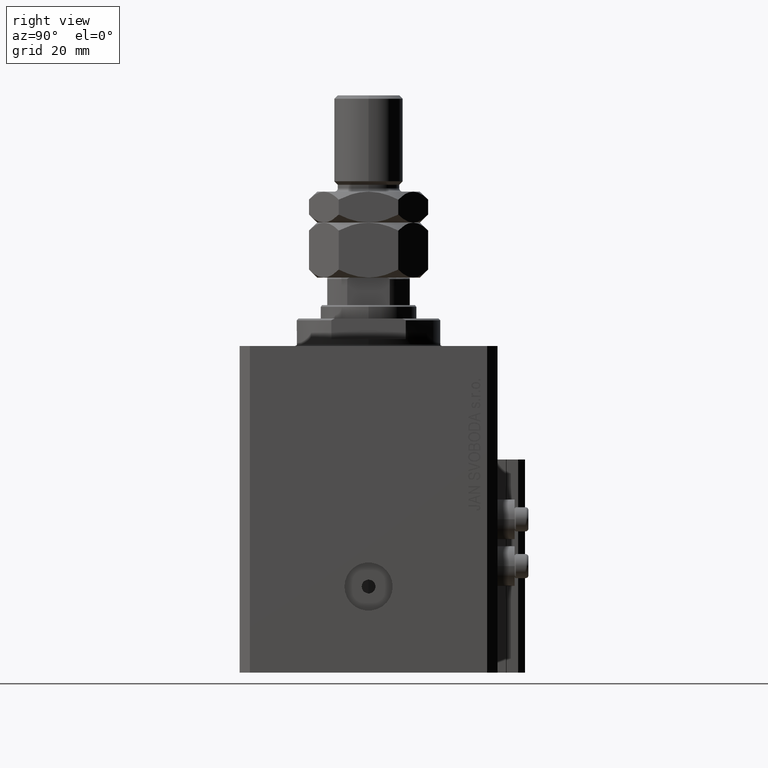
[diagram: clean part render]
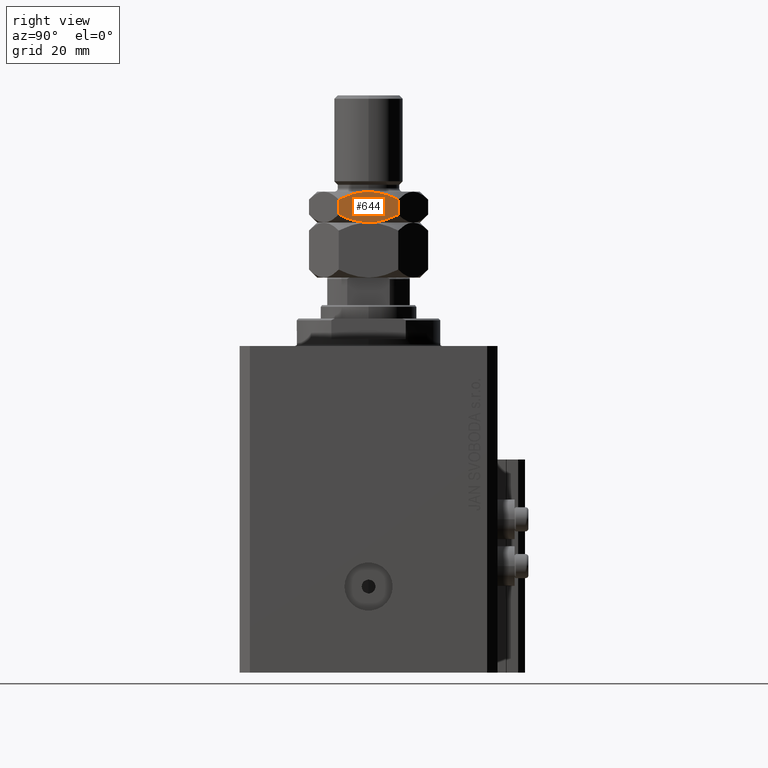
[diagram: same view with one face highlighted and labeled with its STEP entity id]
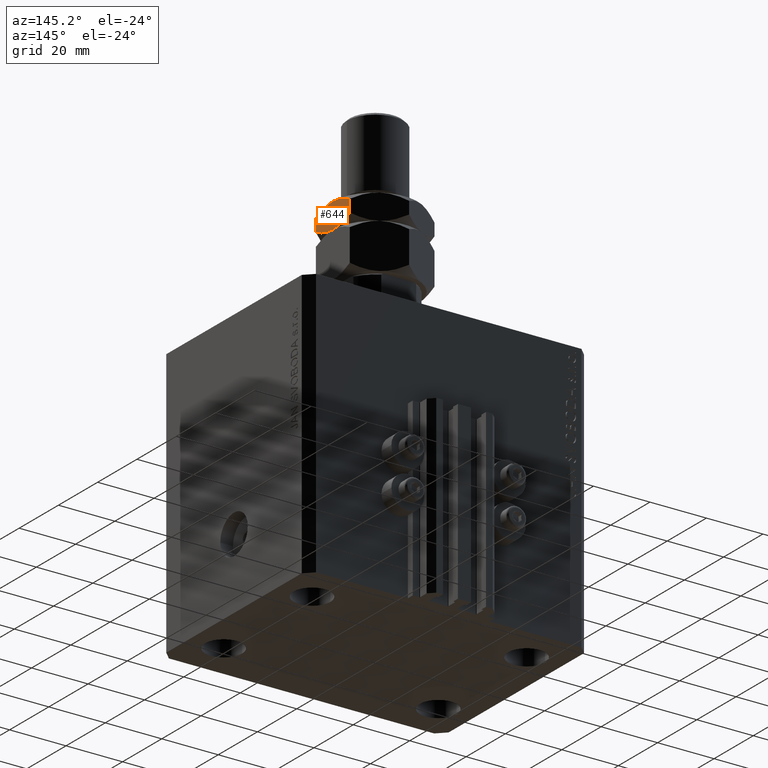
[diagram: same view with one face highlighted and labeled with its STEP entity id]
A machine part, right view. The second image highlights one B-rep face of the part: STEP entity #644.
A second angle (auxiliary view) of the same face is appended — the face is thin or edge-on in the first view.
In plain terms, the highlighted planar face has unit normal (-1, -0, 0).
Its self-contained STEP definition (entity closure, byte-faithful):
#284 = CARTESIAN_POINT ( 'NONE',  ( 14.99999999999999645, 0.000000000000000000, 16.00000000000000000 ) ) ;
#644 = ADVANCED_FACE ( 'NONE', ( #46542 ), #31485, .F. ) ;
#651 = ORIENTED_EDGE ( 'NONE', *, *, #32566, .F. ) ;
#862 = CARTESIAN_POINT ( 'NONE',  ( 14.99999999999999112, -6.248143622294143107, 23.75390217982290864 ) ) ;
#1588 = ORIENTED_EDGE ( 'NONE', *, *, #10066, .F. ) ;
#2014 = CARTESIAN_POINT ( 'NONE',  ( 15.00000000000000000, -5.174827754835039428, 24.13601744246643932 ) ) ;
#2135 = CARTESIAN_POINT ( 'NONE',  ( 15.00000000000000178, -3.006083412830564239, 16.28061096559729393 ) ) ;
#2637 = LINE ( 'NONE', #13972, #26552 ) ;
#2772 = CARTESIAN_POINT ( 'NONE',  ( 14.99999999999999467, 3.004852722955711819, 16.23490203621984307 ) ) ;
#5635 = B_SPLINE_CURVE_WITH_KNOTS ( 'NONE', 3,
 ( #21524, #18304, #48420, #10896, #41011, #40027, #21280, #2772, #8174, #284 ),
 .UNSPECIFIED., .F., .F.,
 ( 4, 2, 2, 2, 4 ),
 ( 0.02288126756189531180, 0.02513980803698757580, 0.02626907827453370953, 0.02739834851207984326, 0.03191542946226437472 ),
 .UNSPECIFIED. ) ;
#6149 = CARTESIAN_POINT ( 'NONE',  ( 14.99999999999999822, 5.180699559534207133, 24.14562739175687867 ) ) ;
#6263 = ORIENTED_EDGE ( 'NONE', *, *, #23060, .F. ) ;
#6292 = CARTESIAN_POINT ( 'NONE',  ( 15.00000000000000000, -3.737365789271273275, 16.44310156405335732 ) ) ;
#7221 = VECTOR ( 'NONE', #7713, 1000.000000000000000 ) ;
#7360 = CARTESIAN_POINT ( 'NONE',  ( 14.99999999999999645, 5.892768039091680343, 23.89692361009772625 ) ) ;
#7713 = DIRECTION ( 'NONE',  ( -0.000000000000000000, -0.000000000000000000, -1.000000000000000000 ) ) ;
#8174 = CARTESIAN_POINT ( 'NONE',  ( 14.99999999999999645, 1.524122972781247309, 15.99999999999999645 ) ) ;
#8259 = CARTESIAN_POINT ( 'NONE',  ( 14.99999999999999645, 1.502314598737159426E-15, 25.00000000000000000 ) ) ;
#8972 = CARTESIAN_POINT ( 'NONE',  ( 14.99999999999999645, 0.000000000000000000, 16.00000000000000000 ) ) ;
#9419 = CARTESIAN_POINT ( 'NONE',  ( 14.99999999999999645, -1.524122972781246865, 25.00000000000000000 ) ) ;
#9870 = CARTESIAN_POINT ( 'NONE',  ( 14.99999999999999645, 1.502314598737159426E-15, 25.00000000000000000 ) ) ;
#9895 = CARTESIAN_POINT ( 'NONE',  ( 14.99999999999999822, -8.660254037844383745, 22.67949192431123961 ) ) ;
#10035 = VERTEX_POINT ( 'NONE', #13734 ) ;
#10066 = EDGE_CURVE ( 'NONE', #10035, #47453, #2637, .T. ) ;
#10222 = AXIS2_PLACEMENT_3D ( 'NONE', #12722, #42116, #34447 ) ;
#10837 = CARTESIAN_POINT ( 'NONE',  ( 14.99999999999999822, 7.301375305910570823, 23.32983397160520411 ) ) ;
#10896 = CARTESIAN_POINT ( 'NONE',  ( 14.99999999999999112, 6.248143622294145771, 17.24609782017707715 ) ) ;
#11011 = DIRECTION ( 'NONE',  ( -0.000000000000000000, -0.000000000000000000, -1.000000000000000000 ) ) ;
#11960 = CARTESIAN_POINT ( 'NONE',  ( 14.99999999999999822, -7.988341278889598662, 23.01544830378863438 ) ) ;
#12722 = CARTESIAN_POINT ( 'NONE',  ( 14.99999999999999822, -8.660254037844381969, 25.00000000000000000 ) ) ;
#13711 = CARTESIAN_POINT ( 'NONE',  ( 14.99999999999999822, -1.517610682399678002, 16.07187944091290888 ) ) ;
#13734 = CARTESIAN_POINT ( 'NONE',  ( 14.99999999999999822, 8.660254037844385522, 22.67949192431123961 ) ) ;
#13972 = CARTESIAN_POINT ( 'NONE',  ( 14.99999999999999645, 8.660254037844385522, 25.00000000000000000 ) ) ;
#15125 = CARTESIAN_POINT ( 'NONE',  ( 14.99999999999999822, -8.660254037844381969, 25.00000000000000000 ) ) ;
#15943 = CARTESIAN_POINT ( 'NONE',  ( 14.99999999999999645, 8.660254037844387298, 18.32050807568876394 ) ) ;
#17191 = CARTESIAN_POINT ( 'NONE',  ( 15.00000000000000000, -8.660254037844381969, 18.32050807568876394 ) ) ;
#18304 = CARTESIAN_POINT ( 'NONE',  ( 14.99999999999999645, 7.988341278889603991, 17.98455169621137983 ) ) ;
#20011 = CARTESIAN_POINT ( 'NONE',  ( 14.99999999999999822, -8.660254037844383745, 22.67949192431123961 ) ) ;
#20254 = CARTESIAN_POINT ( 'NONE',  ( 14.99999999999999645, 1.502314598737159426E-15, 25.00000000000000000 ) ) ;
#20904 = CARTESIAN_POINT ( 'NONE',  ( 15.00000000000000000, -1.891887532498635061, 16.11437633297792615 ) ) ;
#21280 = CARTESIAN_POINT ( 'NONE',  ( 14.99999999999999822, 4.814853579356897839, 16.74999630955690577 ) ) ;
#21367 = CARTESIAN_POINT ( 'NONE',  ( 15.00000000000000178, -5.892768039091683008, 17.10307638990227730 ) ) ;
#21441 = EDGE_CURVE ( 'NONE', #26773, #37728, #23392, .T. ) ;
#21524 = CARTESIAN_POINT ( 'NONE',  ( 14.99999999999999645, 8.660254037844387298, 18.32050807568876394 ) ) ;
#22755 = EDGE_CURVE ( 'NONE', #47453, #26773, #5635, .T. ) ;
#23038 = LINE ( 'NONE', #15125, #7221 ) ;
#23060 = EDGE_CURVE ( 'NONE', #30489, #10035, #29131, .T. ) ;
#23392 = B_SPLINE_CURVE_WITH_KNOTS ( 'NONE', 3,
 ( #47288, #25066, #40113, #13711, #20904, #2135, #6292, #28776, #21367, #36412, #31765, #17191 ),
 .UNSPECIFIED., .F., .F.,
 ( 4, 2, 2, 2, 2, 4 ),
 ( 0.03191542946226437472, 0.03304303448889991252, 0.03417063951553545031, 0.03642584956880652591, 0.03868105962207760151, 0.04093626967534867711 ),
 .UNSPECIFIED. ) ;
#24915 = CARTESIAN_POINT ( 'NONE',  ( 14.99999999999999822, 3.006083412830564683, 24.71938903440270607 ) ) ;
#25066 = CARTESIAN_POINT ( 'NONE',  ( 15.00000000000000178, -0.3804688789667639015, 16.00000000000000000 ) ) ;
#25448 = B_SPLINE_CURVE_WITH_KNOTS ( 'NONE', 3,
 ( #9895, #11960, #28173, #862, #46930, #2014, #45785, #43230, #9419, #8259 ),
 .UNSPECIFIED., .F., .F.,
 ( 4, 2, 2, 2, 4 ),
 ( 0.02288126756189531180, 0.02513980803698757580, 0.02626907827453370953, 0.02739834851207984326, 0.03191542946226437472 ),
 .UNSPECIFIED. ) ;
#25721 = EDGE_CURVE ( 'NONE', #27805, #37728, #23038, .T. ) ;
#25750 = ORIENTED_EDGE ( 'NONE', *, *, #22755, .F. ) ;
#26552 = VECTOR ( 'NONE', #11011, 1000.000000000000000 ) ;
#26757 = EDGE_LOOP ( 'NONE', ( #25750, #1588, #6263, #651, #30756, #36799 ) ) ;
#26773 = VERTEX_POINT ( 'NONE', #8972 ) ;
#27805 = VERTEX_POINT ( 'NONE', #20011 ) ;
#28173 = CARTESIAN_POINT ( 'NONE',  ( 14.99999999999999645, -7.303107243978799623, 23.32903847857429014 ) ) ;
#28623 = CARTESIAN_POINT ( 'NONE',  ( 14.99999999999999822, 0.3804688789667641791, 25.00000000000000000 ) ) ;
#28776 = CARTESIAN_POINT ( 'NONE',  ( 14.99999999999999645, -5.180699559534208021, 16.85437260824312844 ) ) ;
#29131 = B_SPLINE_CURVE_WITH_KNOTS ( 'NONE', 3,
 ( #9870, #28623, #36993, #33292, #48361, #24915, #39970, #6149, #7360, #10837, #38237, #30591 ),
 .UNSPECIFIED., .F., .F.,
 ( 4, 2, 2, 2, 2, 4 ),
 ( 0.03191542946226437472, 0.03304303448889991252, 0.03417063951553545031, 0.03642584956880652591, 0.03868105962207760845, 0.04093626967534868405 ),
 .UNSPECIFIED. ) ;
#30489 = VERTEX_POINT ( 'NONE', #20254 ) ;
#30591 = CARTESIAN_POINT ( 'NONE',  ( 14.99999999999999822, 8.660254037844385522, 22.67949192431123961 ) ) ;
#30756 = ORIENTED_EDGE ( 'NONE', *, *, #25721, .T. ) ;
#31485 = PLANE ( 'NONE',  #10222 ) ;
#31765 = CARTESIAN_POINT ( 'NONE',  ( 15.00000000000000000, -7.988323794068004524, 17.98454295380057744 ) ) ;
#32501 = CARTESIAN_POINT ( 'NONE',  ( 15.00000000000000000, -8.660254037844381969, 18.32050807568876394 ) ) ;
#32566 = EDGE_CURVE ( 'NONE', #27805, #30489, #25448, .T. ) ;
#33292 = CARTESIAN_POINT ( 'NONE',  ( 14.99999999999999467, 1.517610682399677557, 24.92812055908709112 ) ) ;
#34447 = DIRECTION ( 'NONE',  ( 1.001543065824773222E-16, -1.000000000000000000, 0.000000000000000000 ) ) ;
#36412 = CARTESIAN_POINT ( 'NONE',  ( 15.00000000000000000, -7.301375305910570823, 17.67016602839480299 ) ) ;
#36799 = ORIENTED_EDGE ( 'NONE', *, *, #21441, .F. ) ;
#36993 = CARTESIAN_POINT ( 'NONE',  ( 14.99999999999999645, 0.7628644205843058135, 24.98532818133299571 ) ) ;
#37728 = VERTEX_POINT ( 'NONE', #32501 ) ;
#38237 = CARTESIAN_POINT ( 'NONE',  ( 14.99999999999999645, 7.988323794068006301, 23.01545704619942256 ) ) ;
#39970 = CARTESIAN_POINT ( 'NONE',  ( 14.99999999999999645, 3.737365789271271943, 24.55689843594664268 ) ) ;
#40027 = CARTESIAN_POINT ( 'NONE',  ( 15.00000000000000000, 5.174827754835041205, 16.86398255753356423 ) ) ;
#40113 = CARTESIAN_POINT ( 'NONE',  ( 14.99999999999999822, -0.7628644205843061465, 16.01467181866700784 ) ) ;
#41011 = CARTESIAN_POINT ( 'NONE',  ( 14.99999999999999467, 5.891098461327064051, 17.11186337375562871 ) ) ;
#42116 = DIRECTION ( 'NONE',  ( -1.000000000000000000, -1.001543065824773222E-16, 0.000000000000000000 ) ) ;
#43230 = CARTESIAN_POINT ( 'NONE',  ( 15.00000000000000000, -3.004852722955709154, 24.76509796378016404 ) ) ;
#45785 = CARTESIAN_POINT ( 'NONE',  ( 15.00000000000000178, -4.814853579356896063, 24.25000369044311199 ) ) ;
#46542 = FACE_OUTER_BOUND ( 'NONE', #26757, .T. ) ;
#46930 = CARTESIAN_POINT ( 'NONE',  ( 14.99999999999999822, -5.891098461327062275, 23.88813662624436773 ) ) ;
#47288 = CARTESIAN_POINT ( 'NONE',  ( 14.99999999999999645, 0.000000000000000000, 16.00000000000000000 ) ) ;
#47453 = VERTEX_POINT ( 'NONE', #15943 ) ;
#48361 = CARTESIAN_POINT ( 'NONE',  ( 14.99999999999999467, 1.891887532498635061, 24.88562366702208095 ) ) ;
#48420 = CARTESIAN_POINT ( 'NONE',  ( 14.99999999999999645, 7.303107243978802288, 17.67096152142570986 ) ) ;